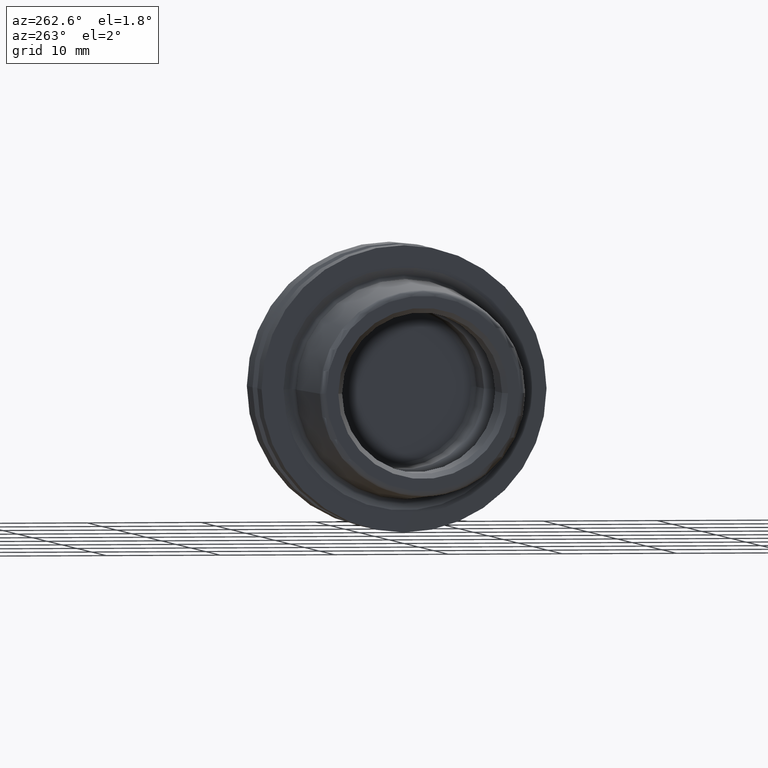
[diagram: clean part render]
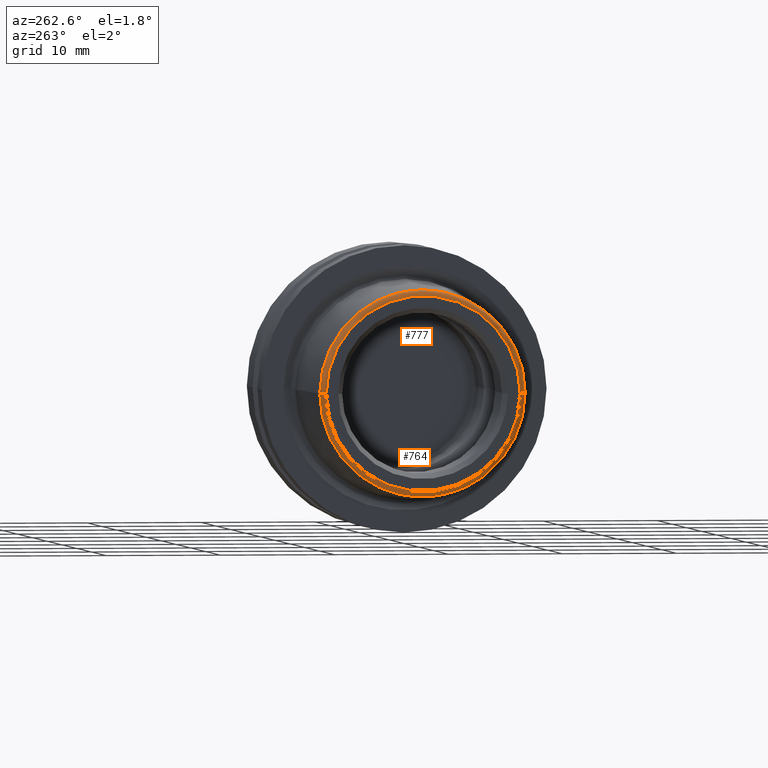
[diagram: same view with one multi-face feature highlighted, each face labeled with its STEP entity id]
A machine part, auxiliary view. The highlighted faces form ONE feature: a constant-radius fillet chain: 2 tangent blend faces with common blend radius 0.5 mm. The faces share edges in the B-rep.
Their STEP definitions:
[1] entity #764 (Torus):
#38=CARTESIAN_POINT('',(-1.24E1,8.510429203113E0,0.E0));
#39=DIRECTION('',(0.E0,0.E0,1.E0));
#40=DIRECTION('',(-4.963106784496E-2,9.987676191710E-1,0.E0));
#41=AXIS2_PLACEMENT_3D('',#38,#39,#40);
#43=CARTESIAN_POINT('',(-1.24E1,-8.510429203113E0,0.E0));
#44=DIRECTION('',(0.E0,0.E0,-1.E0));
#45=DIRECTION('',(-4.963106784496E-2,-9.987676191710E-1,0.E0));
#46=AXIS2_PLACEMENT_3D('',#43,#44,#45);
#48=CARTESIAN_POINT('',(-1.242481553392E1,0.E0,0.E0));
#49=DIRECTION('',(-1.E0,0.E0,0.E0));
#50=DIRECTION('',(0.E0,1.E0,0.E0));
#51=AXIS2_PLACEMENT_3D('',#48,#49,#50);
#58=CARTESIAN_POINT('',(-1.29E1,0.E0,0.E0));
#59=DIRECTION('',(-1.E0,0.E0,0.E0));
#60=DIRECTION('',(0.E0,1.E0,0.E0));
#61=AXIS2_PLACEMENT_3D('',#58,#59,#60);
#580=CARTESIAN_POINT('',(-1.242481553392E1,9.009813012699E0,0.E0));
#581=VERTEX_POINT('',#580);
#582=CARTESIAN_POINT('',(-1.242481553392E1,-9.009813012699E0,0.E0));
#583=VERTEX_POINT('',#582);
#588=CARTESIAN_POINT('',(-1.29E1,8.510429203113E0,0.E0));
#589=VERTEX_POINT('',#588);
#590=CARTESIAN_POINT('',(-1.29E1,-8.510429203113E0,0.E0));
#591=VERTEX_POINT('',#590);
#750=CARTESIAN_POINT('',(-1.24E1,0.E0,0.E0));
#751=DIRECTION('',(1.E0,0.E0,0.E0));
#752=DIRECTION('',(0.E0,-1.E0,0.E0));
#753=AXIS2_PLACEMENT_3D('',#750,#751,#752);
#754=TOROIDAL_SURFACE('',#753,8.510429203113E0,5.E-1);
#756=ORIENTED_EDGE('',*,*,#755,.T.);
#758=ORIENTED_EDGE('',*,*,#757,.T.);
#760=ORIENTED_EDGE('',*,*,#759,.F.);
#761=ORIENTED_EDGE('',*,*,#744,.F.);
#762=EDGE_LOOP('',(#756,#758,#760,#761));
#763=FACE_OUTER_BOUND('',#762,.F.);
#764=ADVANCED_FACE('',(#763),#754,.T.);
#42=CIRCLE('',#41,5.E-1);
#47=CIRCLE('',#46,5.E-1);
#52=CIRCLE('',#51,9.009813012699E0);
#62=CIRCLE('',#61,8.510429203113E0);
#744=EDGE_CURVE('',#581,#583,#52,.T.);
#755=EDGE_CURVE('',#581,#589,#42,.T.);
#757=EDGE_CURVE('',#589,#591,#62,.T.);
#759=EDGE_CURVE('',#583,#591,#47,.T.);
[2] entity #777 (Torus):
#38=CARTESIAN_POINT('',(-1.24E1,8.510429203113E0,0.E0));
#39=DIRECTION('',(0.E0,0.E0,1.E0));
#40=DIRECTION('',(-4.963106784496E-2,9.987676191710E-1,0.E0));
#41=AXIS2_PLACEMENT_3D('',#38,#39,#40);
#43=CARTESIAN_POINT('',(-1.24E1,-8.510429203113E0,0.E0));
#44=DIRECTION('',(0.E0,0.E0,-1.E0));
#45=DIRECTION('',(-4.963106784496E-2,-9.987676191710E-1,0.E0));
#46=AXIS2_PLACEMENT_3D('',#43,#44,#45);
#53=CARTESIAN_POINT('',(-1.242481553392E1,0.E0,0.E0));
#54=DIRECTION('',(1.E0,0.E0,0.E0));
#55=DIRECTION('',(0.E0,1.E0,0.E0));
#56=AXIS2_PLACEMENT_3D('',#53,#54,#55);
#63=CARTESIAN_POINT('',(-1.29E1,0.E0,0.E0));
#64=DIRECTION('',(1.E0,0.E0,0.E0));
#65=DIRECTION('',(0.E0,1.E0,0.E0));
#66=AXIS2_PLACEMENT_3D('',#63,#64,#65);
#580=CARTESIAN_POINT('',(-1.242481553392E1,9.009813012699E0,0.E0));
#581=VERTEX_POINT('',#580);
#582=CARTESIAN_POINT('',(-1.242481553392E1,-9.009813012699E0,0.E0));
#583=VERTEX_POINT('',#582);
#588=CARTESIAN_POINT('',(-1.29E1,8.510429203113E0,0.E0));
#589=VERTEX_POINT('',#588);
#590=CARTESIAN_POINT('',(-1.29E1,-8.510429203113E0,0.E0));
#591=VERTEX_POINT('',#590);
#765=CARTESIAN_POINT('',(-1.24E1,0.E0,0.E0));
#766=DIRECTION('',(1.E0,0.E0,0.E0));
#767=DIRECTION('',(0.E0,-1.E0,0.E0));
#768=AXIS2_PLACEMENT_3D('',#765,#766,#767);
#769=TOROIDAL_SURFACE('',#768,8.510429203113E0,5.E-1);
#770=ORIENTED_EDGE('',*,*,#755,.F.);
#771=ORIENTED_EDGE('',*,*,#701,.T.);
#772=ORIENTED_EDGE('',*,*,#759,.T.);
#774=ORIENTED_EDGE('',*,*,#773,.F.);
#775=EDGE_LOOP('',(#770,#771,#772,#774));
#776=FACE_OUTER_BOUND('',#775,.F.);
#777=ADVANCED_FACE('',(#776),#769,.T.);
#42=CIRCLE('',#41,5.E-1);
#47=CIRCLE('',#46,5.E-1);
#57=CIRCLE('',#56,9.009813012699E0);
#67=CIRCLE('',#66,8.510429203113E0);
#701=EDGE_CURVE('',#581,#583,#57,.T.);
#755=EDGE_CURVE('',#581,#589,#42,.T.);
#759=EDGE_CURVE('',#583,#591,#47,.T.);
#773=EDGE_CURVE('',#589,#591,#67,.T.);